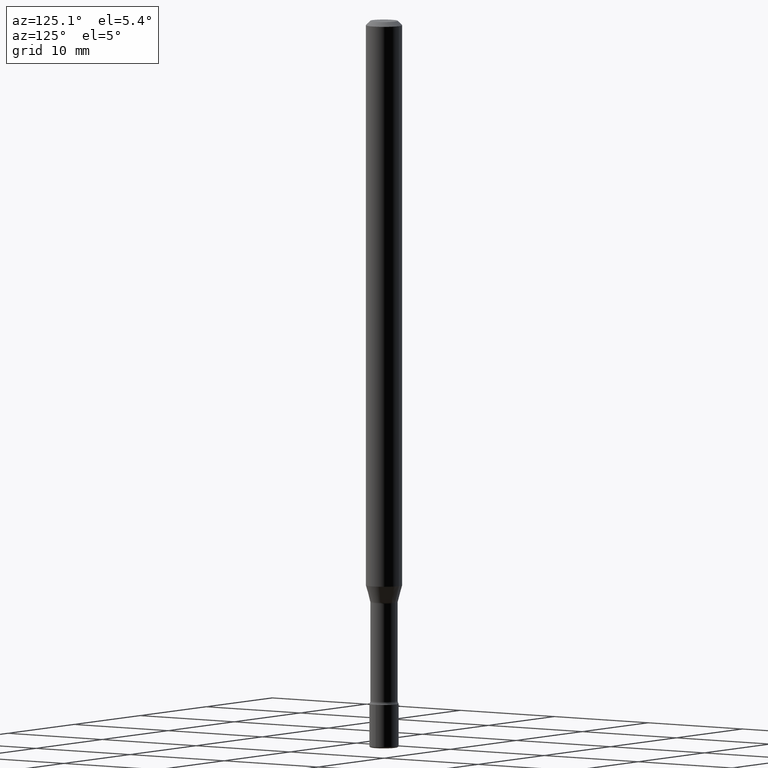
[diagram: clean part render]
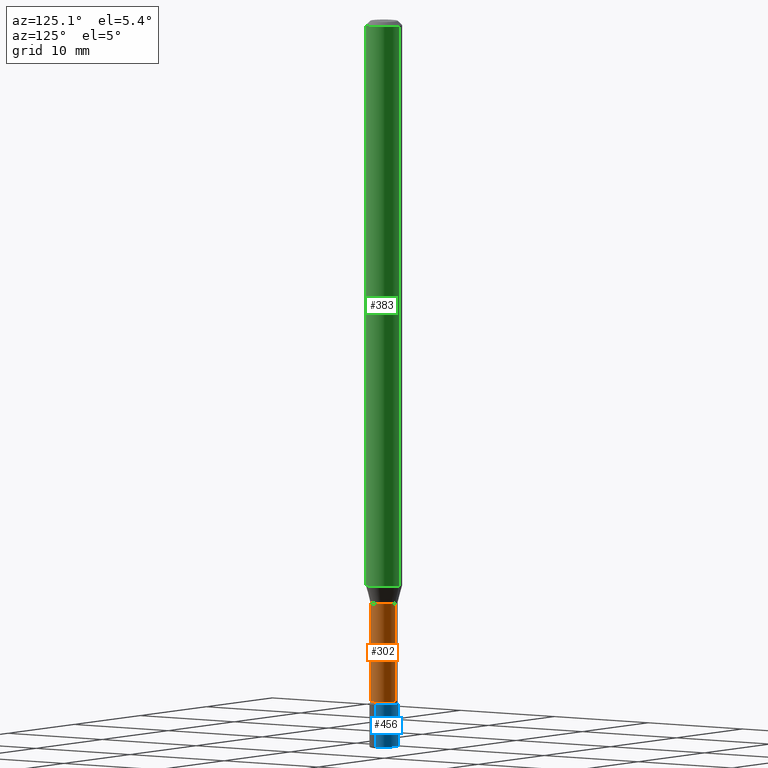
[diagram: same view with three faces highlighted in distinct colors, each labeled with its STEP entity id]
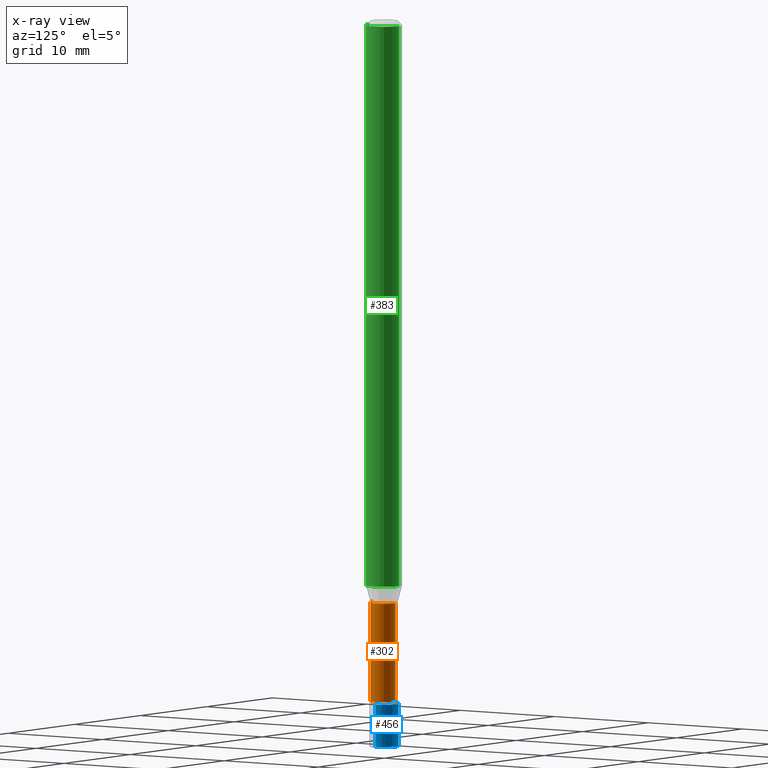
[diagram: x-ray of the same camera — body ghosted, the three highlighted faces saturated]
A machine part, auxiliary view with three faces highlighted in distinct colors.
The next image is the same camera in x-ray (body ghosted, the three faces saturated) — at least one of them is partly hidden behind the body in this view.
Their STEP definitions:

[orange] entity #302 — the highlighted cylindrical surface (edge-blend (fillet) strip) has radius 1.1938 mm, axis along (-0, 0, 1).
#1 = CARTESIAN_POINT ( 'NONE',  ( -3.281992458512545531E-16, -0.04700000000000000705, 6.421681338784253533E-16 ) ) ;
#23 = AXIS2_PLACEMENT_3D ( 'NONE', #212, #435, #384 ) ;
#25 = VERTEX_POINT ( 'NONE', #318 ) ;
#31 = ORIENTED_EDGE ( 'NONE', *, *, #61, .T. ) ;
#34 = EDGE_CURVE ( 'NONE', #101, #348, #334, .T. ) ;
#61 = EDGE_CURVE ( 'NONE', #348, #25, #266, .T. ) ;
#64 = AXIS2_PLACEMENT_3D ( 'NONE', #79, #314, #124 ) ;
#66 = VERTEX_POINT ( 'NONE', #252 ) ;
#72 = EDGE_LOOP ( 'NONE', ( #423, #31, #534, #381 ) ) ;
#74 = FACE_OUTER_BOUND ( 'NONE', #72, .T. ) ;
#79 = CARTESIAN_POINT ( 'NONE',  ( 5.725012483141114982E-29, -8.173314353297587961E-15, -2.341000000000000192 ) ) ;
#83 = DIRECTION ( 'NONE',  ( -2.445541428082492260E-29, 3.491377340152750324E-15, 1.000000000000000000 ) ) ;
#94 = DIRECTION ( 'NONE',  ( -2.445541428082492260E-29, 3.491377340152750324E-15, 1.000000000000000000 ) ) ;
#101 = VERTEX_POINT ( 'NONE', #276 ) ;
#114 = CARTESIAN_POINT ( 'NONE',  ( 3.446132268437060393E-16, 0.04699999999999183303, -2.341000000000000192 ) ) ;
#124 = DIRECTION ( 'NONE',  ( -6.982962677686265922E-15, -1.000000000000000000, 5.812442539711197800E-15 ) ) ;
#177 = VECTOR ( 'NONE', #83, 39.37007874015748143 ) ;
#181 = CARTESIAN_POINT ( 'NONE',  ( 4.895912280719391732E-29, -6.989649408508267577E-15, -2.001974787463811190 ) ) ;
#212 = CARTESIAN_POINT ( 'NONE',  ( -1.169113584055446105E-44, 1.669184350826100908E-30, 4.780733988912460139E-16 ) ) ;
#252 = CARTESIAN_POINT ( 'NONE',  ( -3.281992458512055945E-16, -0.04700000000000699452, -2.001974787463810745 ) ) ;
#261 = AXIS2_PLACEMENT_3D ( 'NONE', #181, #447, #360 ) ;
#266 = LINE ( 'NONE', #457, #268 ) ;
#268 = VECTOR ( 'NONE', #94, 39.37007874015748143 ) ;
#276 = CARTESIAN_POINT ( 'NONE',  ( -3.281992458511972621E-16, -0.04700000000000817413, -2.340999999999999748 ) ) ;
#287 = CIRCLE ( 'NONE', #261, 0.04700000000000000705 ) ;
#302 = ADVANCED_FACE ( 'NONE', ( #74 ), #521, .T. ) ;
#314 = DIRECTION ( 'NONE',  ( -2.445541428082492260E-29, 3.491377340152750324E-15, 1.000000000000000000 ) ) ;
#318 = CARTESIAN_POINT ( 'NONE',  ( 3.339550858073042806E-16, 0.04699999999999300571, -2.001974787463811190 ) ) ;
#334 = CIRCLE ( 'NONE', #64, 0.04700000000000000705 ) ;
#348 = VERTEX_POINT ( 'NONE', #114 ) ;
#360 = DIRECTION ( 'NONE',  ( -6.982962677686265922E-15, -1.000000000000000000, 5.812442539711197800E-15 ) ) ;
#381 = ORIENTED_EDGE ( 'NONE', *, *, #412, .F. ) ;
#384 = DIRECTION ( 'NONE',  ( -6.982962677686265922E-15, -1.000000000000000000, 3.491377340152749929E-15 ) ) ;
#412 = EDGE_CURVE ( 'NONE', #101, #66, #538, .T. ) ;
#423 = ORIENTED_EDGE ( 'NONE', *, *, #34, .T. ) ;
#435 = DIRECTION ( 'NONE',  ( -2.445541428082492260E-29, 3.491377340152750324E-15, 1.000000000000000000 ) ) ;
#447 = DIRECTION ( 'NONE',  ( -2.445541428082492260E-29, 3.491377340152750324E-15, 1.000000000000000000 ) ) ;
#457 = CARTESIAN_POINT ( 'NONE',  ( 3.339550858072470388E-16, 0.04700000000000000705, 3.139786639040668225E-16 ) ) ;
#511 = EDGE_CURVE ( 'NONE', #66, #25, #287, .T. ) ;
#521 = CYLINDRICAL_SURFACE ( 'NONE', #23, 0.04700000000000000705 ) ;
#534 = ORIENTED_EDGE ( 'NONE', *, *, #511, .F. ) ;
#538 = LINE ( 'NONE', #1, #177 ) ;

[blue] entity #456 — the highlighted cylindrical surface (edge-blend (fillet) strip) has radius 1.27 mm, axis along (-0, 0, 1).
#2 = CARTESIAN_POINT ( 'NONE',  ( 0.05000000000000000278, -3.491481338843133848E-16, 2.438088387897968247E-30 ) ) ;
#6 = CYLINDRICAL_SURFACE ( 'NONE', #378, 0.05000000000000000278 ) ;
#28 = EDGE_CURVE ( 'NONE', #142, #248, #356, .T. ) ;
#48 = AXIS2_PLACEMENT_3D ( 'NONE', #502, #374, #151 ) ;
#84 = VERTEX_POINT ( 'NONE', #152 ) ;
#90 = EDGE_CURVE ( 'NONE', #142, #449, #316, .T. ) ;
#100 = CARTESIAN_POINT ( 'NONE',  ( 6.101444671431915719E-29, -8.711245940413648329E-15, -2.495000000000000107 ) ) ;
#115 = CIRCLE ( 'NONE', #48, 0.05000000000000000278 ) ;
#119 = ORIENTED_EDGE ( 'NONE', *, *, #90, .T. ) ;
#134 = VECTOR ( 'NONE', #228, 39.37007874015748143 ) ;
#142 = VERTEX_POINT ( 'NONE', #454 ) ;
#143 = DIRECTION ( 'NONE',  ( -2.445468806185136877E-29, 3.491481338843145188E-15, 1.000000000000000000 ) ) ;
#151 = DIRECTION ( 'NONE',  ( 1.000000000000000000, -6.982962677686274599E-15, 0.000000000000000000 ) ) ;
#152 = CARTESIAN_POINT ( 'NONE',  ( -0.05000000000000000278, -8.102842175467469648E-15, -2.350000000000000089 ) ) ;
#174 = AXIS2_PLACEMENT_3D ( 'NONE', #100, #194, #280 ) ;
#184 = CARTESIAN_POINT ( 'NONE',  ( -0.05000000000000000278, 3.552713678800501127E-16, -2.459467545127453311E-30 ) ) ;
#194 = DIRECTION ( 'NONE',  ( -2.445468806185136597E-29, 3.491481338843145583E-15, 1.000000000000000000 ) ) ;
#198 = EDGE_CURVE ( 'NONE', #248, #84, #115, .T. ) ;
#228 = DIRECTION ( 'NONE',  ( -2.445468806185136877E-29, 3.491481338843145188E-15, 1.000000000000000000 ) ) ;
#248 = VERTEX_POINT ( 'NONE', #263 ) ;
#253 = ORIENTED_EDGE ( 'NONE', *, *, #498, .T. ) ;
#262 = ORIENTED_EDGE ( 'NONE', *, *, #198, .F. ) ;
#263 = CARTESIAN_POINT ( 'NONE',  ( 0.05000000000000000278, -8.554129280165706697E-15, -2.350000000000000089 ) ) ;
#273 = CARTESIAN_POINT ( 'NONE',  ( -0.04999999999999989175, -8.355974572533597921E-15, -2.495000000000000107 ) ) ;
#275 = DIRECTION ( 'NONE',  ( -2.445468806185136597E-29, 3.491481338843145583E-15, 1.000000000000000000 ) ) ;
#280 = DIRECTION ( 'NONE',  ( 1.000000000000000000, -6.982962677686254878E-15, 0.000000000000000000 ) ) ;
#316 = CIRCLE ( 'NONE', #174, 0.05000000000000000278 ) ;
#319 = DIRECTION ( 'NONE',  ( 1.000000000000000000, -6.982962677686267499E-15, 4.876176775795936353E-29 ) ) ;
#322 = FACE_OUTER_BOUND ( 'NONE', #466, .T. ) ;
#355 = LINE ( 'NONE', #184, #487 ) ;
#356 = LINE ( 'NONE', #2, #134 ) ;
#374 = DIRECTION ( 'NONE',  ( -2.445468806185136597E-29, 3.491481338843145583E-15, 1.000000000000000000 ) ) ;
#378 = AXIS2_PLACEMENT_3D ( 'NONE', #493, #275, #319 ) ;
#449 = VERTEX_POINT ( 'NONE', #273 ) ;
#454 = CARTESIAN_POINT ( 'NONE',  ( 0.04999999999999989175, -9.060394074297958509E-15, -2.495000000000000107 ) ) ;
#456 = ADVANCED_FACE ( 'NONE', ( #322 ), #6, .T. ) ;
#466 = EDGE_LOOP ( 'NONE', ( #119, #253, #262, #554 ) ) ;
#487 = VECTOR ( 'NONE', #143, 39.37007874015748143 ) ;
#493 = CARTESIAN_POINT ( 'NONE',  ( 0.000000000000000000, 0.000000000000000000, 0.000000000000000000 ) ) ;
#498 = EDGE_CURVE ( 'NONE', #449, #84, #355, .T. ) ;
#502 = CARTESIAN_POINT ( 'NONE',  ( 5.746851694535070554E-29, -8.204981146281391784E-15, -2.350000000000000089 ) ) ;
#554 = ORIENTED_EDGE ( 'NONE', *, *, #28, .F. ) ;

[green] entity #383 — the highlighted cylindrical surface (edge-blend (fillet) strip) has radius 1.5875 mm, axis along (-0, 0, 1).
#3 = CYLINDRICAL_SURFACE ( 'NONE', #187, 0.06250000000000000000 ) ;
#26 = VERTEX_POINT ( 'NONE', #179 ) ;
#29 = LINE ( 'NONE', #517, #206 ) ;
#55 = DIRECTION ( 'NONE',  ( -6.982962677686265922E-15, -1.000000000000000000, 4.370956789862821150E-15 ) ) ;
#91 = FACE_OUTER_BOUND ( 'NONE', #464, .T. ) ;
#105 = CARTESIAN_POINT ( 'NONE',  ( 4.749616140809899417E-29, -6.780789717166906576E-15, -1.942153212482682578 ) ) ;
#107 = CIRCLE ( 'NONE', #476, 0.06250000000000000000 ) ;
#136 = CARTESIAN_POINT ( 'NONE',  ( -1.169113584055446105E-44, 1.669184350826100908E-30, 4.780733988912460139E-16 ) ) ;
#138 = DIRECTION ( 'NONE',  ( -6.982962677686265922E-15, -1.000000000000000000, 3.483106191921935554E-15 ) ) ;
#139 = EDGE_CURVE ( 'NONE', #340, #530, #107, .T. ) ;
#179 = CARTESIAN_POINT ( 'NONE',  ( 4.440892098501103423E-16, 0.06249999999999993755, -0.01500000000000024578 ) ) ;
#187 = AXIS2_PLACEMENT_3D ( 'NONE', #136, #490, #401 ) ;
#201 = ORIENTED_EDGE ( 'NONE', *, *, #354, .F. ) ;
#206 = VECTOR ( 'NONE', #298, 39.37007874015748143 ) ;
#230 = CARTESIAN_POINT ( 'NONE',  ( 4.440892098501102436E-16, 0.06249999999999325540, -1.942153212482682800 ) ) ;
#236 = CARTESIAN_POINT ( 'NONE',  ( -4.364351673553912750E-16, -0.06250000000000005551, -0.01499999999999981036 ) ) ;
#254 = CARTESIAN_POINT ( 'NONE',  ( -4.364351673553916201E-16, -0.06250000000000000000, 6.962844826507930571E-16 ) ) ;
#265 = CARTESIAN_POINT ( 'NONE',  ( -4.364351673553439433E-16, -0.06250000000000675848, -1.942153212482682134 ) ) ;
#277 = VECTOR ( 'NONE', #431, 39.37007874015748143 ) ;
#291 = ORIENTED_EDGE ( 'NONE', *, *, #349, .T. ) ;
#298 = DIRECTION ( 'NONE',  ( -2.445541428082492260E-29, 3.491377340152750324E-15, 1.000000000000000000 ) ) ;
#315 = DIRECTION ( 'NONE',  ( -2.445541428082492260E-29, 3.491377340152750324E-15, 1.000000000000000000 ) ) ;
#337 = ORIENTED_EDGE ( 'NONE', *, *, #139, .T. ) ;
#340 = VERTEX_POINT ( 'NONE', #265 ) ;
#349 = EDGE_CURVE ( 'NONE', #530, #26, #29, .T. ) ;
#354 = EDGE_CURVE ( 'NONE', #340, #475, #470, .T. ) ;
#383 = ADVANCED_FACE ( 'NONE', ( #91 ), #3, .T. ) ;
#389 = ORIENTED_EDGE ( 'NONE', *, *, #396, .F. ) ;
#396 = EDGE_CURVE ( 'NONE', #475, #26, #549, .T. ) ;
#401 = DIRECTION ( 'NONE',  ( -6.982962677686265922E-15, -1.000000000000000000, 3.491377340152751112E-15 ) ) ;
#411 = CARTESIAN_POINT ( 'NONE',  ( 3.668312142123745187E-31, -5.237066010229135864E-17, -0.01500000000000002720 ) ) ;
#415 = DIRECTION ( 'NONE',  ( -2.445541428082492260E-29, 3.491377340152750324E-15, 1.000000000000000000 ) ) ;
#431 = DIRECTION ( 'NONE',  ( -2.445541428082492260E-29, 3.491377340152750324E-15, 1.000000000000000000 ) ) ;
#464 = EDGE_LOOP ( 'NONE', ( #337, #291, #389, #201 ) ) ;
#470 = LINE ( 'NONE', #254, #277 ) ;
#475 = VERTEX_POINT ( 'NONE', #236 ) ;
#476 = AXIS2_PLACEMENT_3D ( 'NONE', #105, #415, #55 ) ;
#490 = DIRECTION ( 'NONE',  ( -2.445541428082492260E-29, 3.491377340152750324E-15, 1.000000000000000000 ) ) ;
#508 = AXIS2_PLACEMENT_3D ( 'NONE', #411, #315, #138 ) ;
#517 = CARTESIAN_POINT ( 'NONE',  ( 4.440892098500625669E-16, 0.06250000000000000000, 2.598623151316991680E-16 ) ) ;
#530 = VERTEX_POINT ( 'NONE', #230 ) ;
#549 = CIRCLE ( 'NONE', #508, 0.06250000000000000000 ) ;